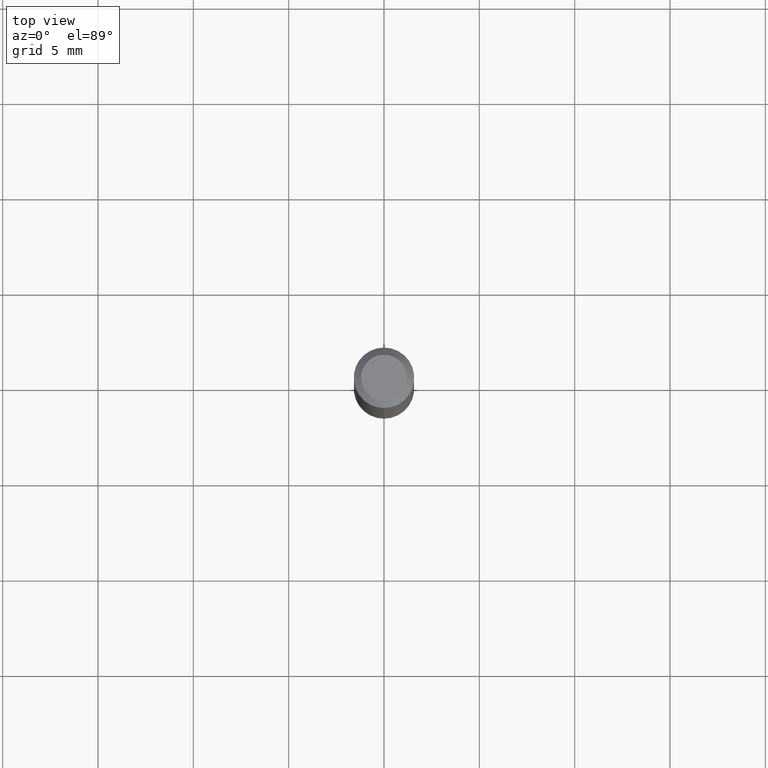
[diagram: clean part render]
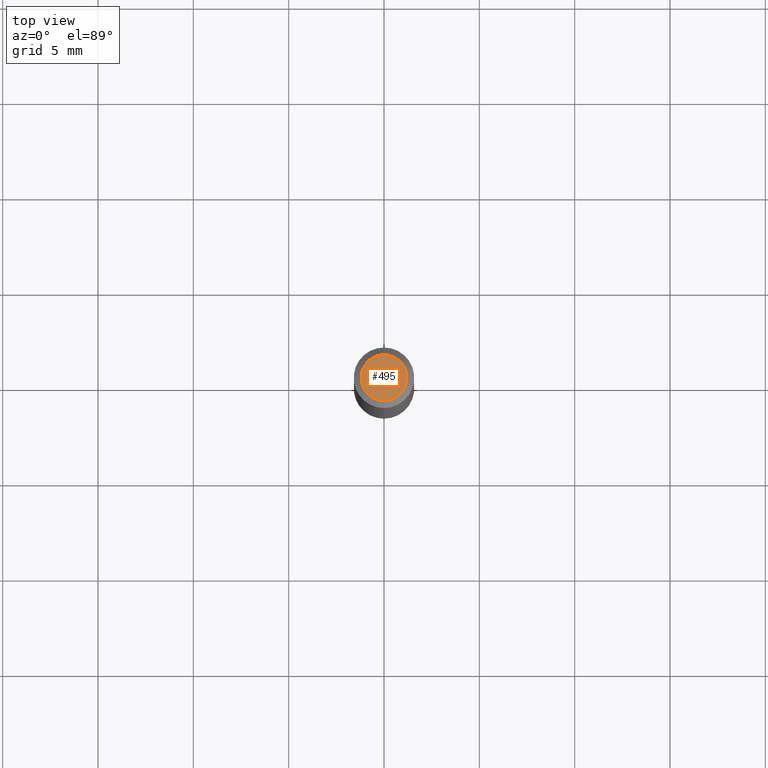
[diagram: same view with one face highlighted and labeled with its STEP entity id]
A machine part, top view. The second image highlights one B-rep face of the part: STEP entity #495.
In plain terms, the highlighted planar face has unit normal (0, -0, -1).
Its self-contained STEP definition (entity closure, byte-faithful):
#3 = CIRCLE ( 'NONE', #342, 0.04750000000000000749 ) ;
#13 = AXIS2_PLACEMENT_3D ( 'NONE', #132, #456, #284 ) ;
#37 = VERTEX_POINT ( 'NONE', #49 ) ;
#49 = CARTESIAN_POINT ( 'NONE',  ( -3.773273898774340269E-16, -0.04750000000000000749, 4.390195805009133719E-16 ) ) ;
#123 = VERTEX_POINT ( 'NONE', #472 ) ;
#125 = EDGE_CURVE ( 'NONE', #37, #123, #3, .T. ) ;
#132 = CARTESIAN_POINT ( 'NONE',  ( -6.680732152424787162E-45, 9.537707241656864652E-31, 2.731795081361451486E-16 ) ) ;
#176 = CARTESIAN_POINT ( 'NONE',  ( 3.316907271900976589E-16, 0.04750000000000000749, -2.925031829669569822E-17 ) ) ;
#180 = CARTESIAN_POINT ( 'NONE',  ( -6.680732152424787162E-45, 9.537707241656864652E-31, 2.731795081361451486E-16 ) ) ;
#250 = DIRECTION ( 'NONE',  ( 2.445546592424236212E-29, -3.491369944521436528E-15, -1.000000000000000000 ) ) ;
#284 = DIRECTION ( 'NONE',  ( -6.982962677686265133E-15, -1.000000000000000000, 3.491369944521436133E-15 ) ) ;
#342 = AXIS2_PLACEMENT_3D ( 'NONE', #180, #508, #432 ) ;
#367 = DIRECTION ( 'NONE',  ( 6.982962677686265922E-15, 1.000000000000000000, -3.491369944521436528E-15 ) ) ;
#370 = EDGE_CURVE ( 'NONE', #123, #37, #491, .T. ) ;
#396 = AXIS2_PLACEMENT_3D ( 'NONE', #176, #250, #367 ) ;
#417 = PLANE ( 'NONE',  #396 ) ;
#422 = EDGE_LOOP ( 'NONE', ( #443, #490 ) ) ;
#432 = DIRECTION ( 'NONE',  ( -6.982962677686265133E-15, -1.000000000000000000, 3.491369944521436133E-15 ) ) ;
#443 = ORIENTED_EDGE ( 'NONE', *, *, #370, .T. ) ;
#456 = DIRECTION ( 'NONE',  ( -2.445546592424236492E-29, 3.491369944521436528E-15, 1.000000000000000000 ) ) ;
#472 = CARTESIAN_POINT ( 'NONE',  ( 3.840629472727447874E-16, 0.04750000000000000749, 1.073394357713768884E-16 ) ) ;
#490 = ORIENTED_EDGE ( 'NONE', *, *, #125, .T. ) ;
#491 = CIRCLE ( 'NONE', #13, 0.04750000000000000749 ) ;
#493 = FACE_OUTER_BOUND ( 'NONE', #422, .T. ) ;
#495 = ADVANCED_FACE ( 'NONE', ( #493 ), #417, .F. ) ;
#508 = DIRECTION ( 'NONE',  ( -2.445546592424236492E-29, 3.491369944521436528E-15, 1.000000000000000000 ) ) ;